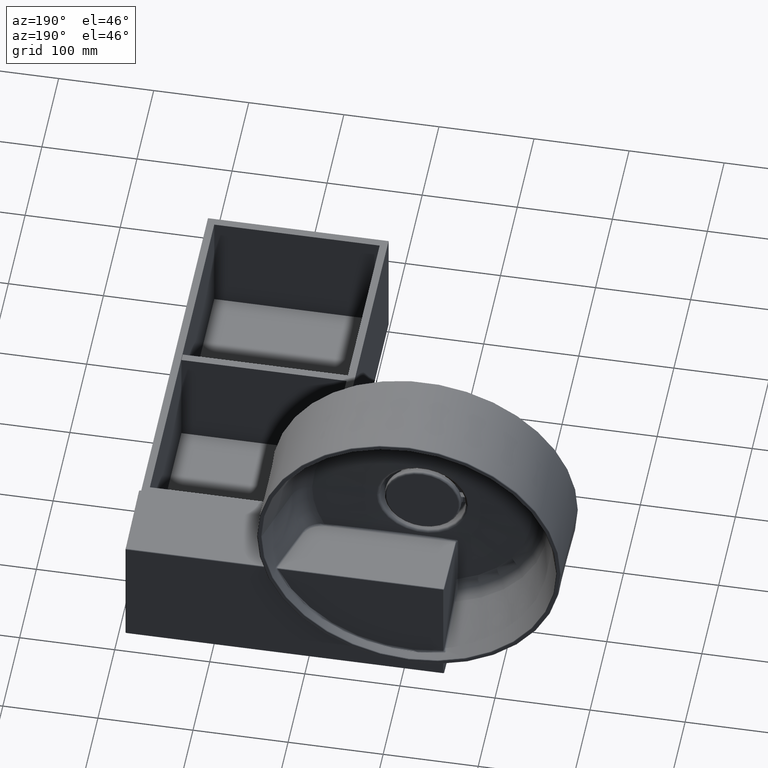
[diagram: clean part render]
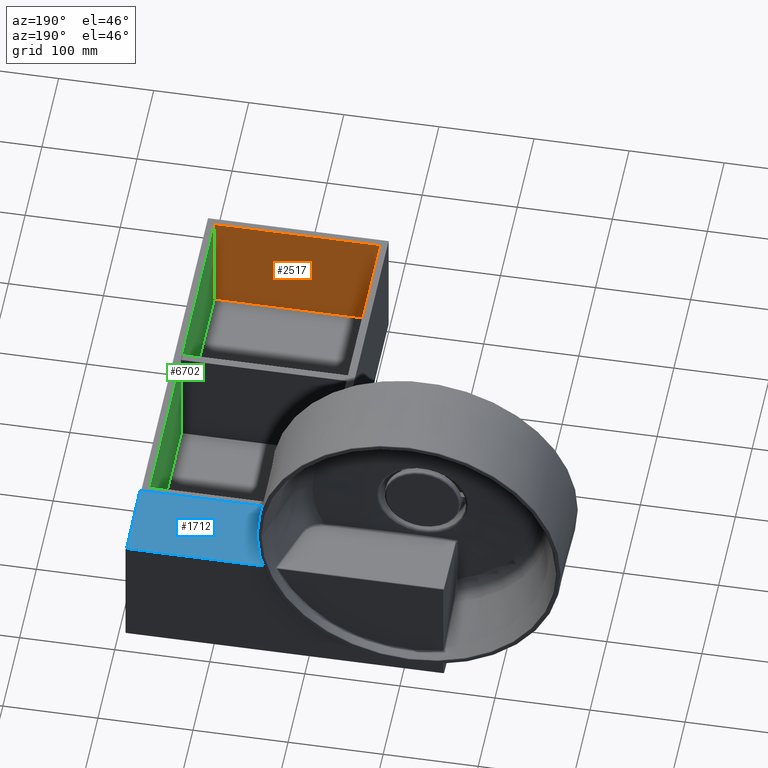
[diagram: same view with three faces highlighted in distinct colors, each labeled with its STEP entity id]
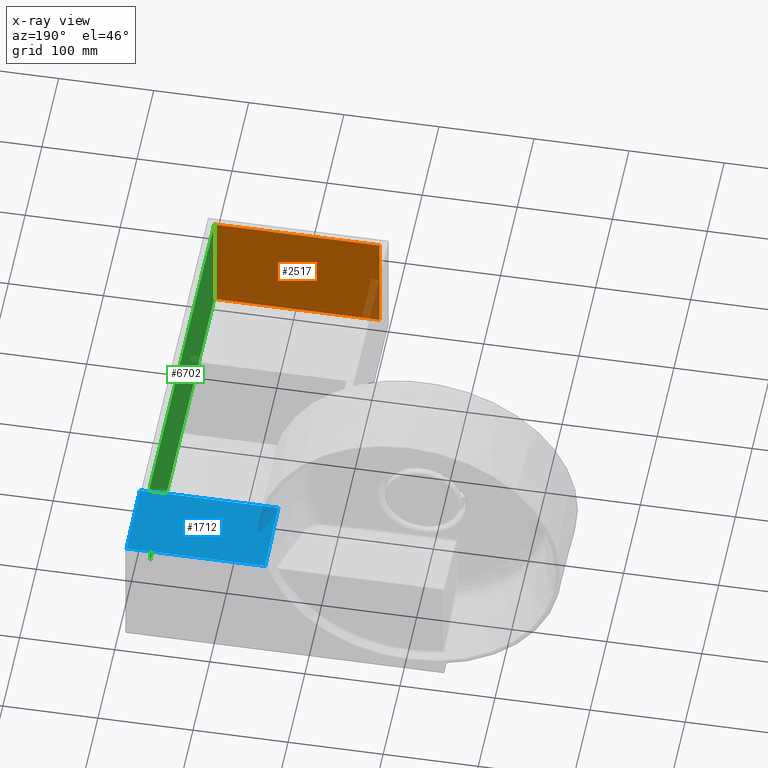
[diagram: x-ray of the same camera — body ghosted, the three highlighted faces saturated]
A machine part, auxiliary view with three faces highlighted in distinct colors.
The next image is the same camera in x-ray (body ghosted, the three faces saturated) — at least one of them is partly hidden behind the body in this view.
Their STEP definitions:

[orange] entity #2517 — the highlighted planar face has unit normal (0, 1, 0).
#16 = CARTESIAN_POINT ( 'NONE',  ( 181.9999999999999716, 8.000000000000000000, -110.9999999999999858 ) ) ;
#446 = EDGE_CURVE ( 'NONE', #1735, #4037, #6811, .T. ) ;
#623 = CARTESIAN_POINT ( 'NONE',  ( -5.775304786800829144E-17, 8.000000000000000000, -110.9999999999999858 ) ) ;
#917 = VECTOR ( 'NONE', #9969, 1000.000000000000000 ) ;
#952 = VECTOR ( 'NONE', #6696, 1000.000000000000000 ) ;
#1735 = VERTEX_POINT ( 'NONE', #3499 ) ;
#2302 = LINE ( 'NONE', #623, #6671 ) ;
#2517 = ADVANCED_FACE ( 'NONE', ( #6153 ), #5321, .T. ) ;
#3418 = EDGE_LOOP ( 'NONE', ( #11144, #10845, #10618, #10668 ) ) ;
#3499 = CARTESIAN_POINT ( 'NONE',  ( 182.0000000000000000, 8.000000000000000000, 0.0000000000000000000 ) ) ;
#3772 = VERTEX_POINT ( 'NONE', #10442 ) ;
#4037 = VERTEX_POINT ( 'NONE', #16 ) ;
#4113 = VECTOR ( 'NONE', #7063, 1000.000000000000000 ) ;
#5155 = DIRECTION ( 'NONE',  ( 0.0000000000000000000, -0.0000000000000000000, 1.000000000000000000 ) ) ;
#5217 = DIRECTION ( 'NONE',  ( 0.0000000000000000000, 1.000000000000000000, 0.0000000000000000000 ) ) ;
#5257 = VERTEX_POINT ( 'NONE', #7299 ) ;
#5270 = CARTESIAN_POINT ( 'NONE',  ( 0.0000000000000000000, 8.000000000000000000, 0.0000000000000000000 ) ) ;
#5321 = PLANE ( 'NONE',  #7962 ) ;
#6138 = EDGE_CURVE ( 'NONE', #5257, #4037, #2302, .T. ) ;
#6153 = FACE_OUTER_BOUND ( 'NONE', #3418, .T. ) ;
#6671 = VECTOR ( 'NONE', #7472, 1000.000000000000000 ) ;
#6696 = DIRECTION ( 'NONE',  ( -2.238352872228138170E-16, 0.0000000000000000000, -1.000000000000000000 ) ) ;
#6748 = CARTESIAN_POINT ( 'NONE',  ( 181.9999999999999716, 8.000000000000000000, -110.9999999999999858 ) ) ;
#6811 = LINE ( 'NONE', #6748, #952 ) ;
#6860 = CARTESIAN_POINT ( 'NONE',  ( 8.000000000000023093, 8.000000000000000000, -9.639155451353390532E-16 ) ) ;
#6906 = LINE ( 'NONE', #6860, #4113 ) ;
#6991 = EDGE_CURVE ( 'NONE', #5257, #3772, #6906, .T. ) ;
#7063 = DIRECTION ( 'NONE',  ( 1.204894431419170365E-16, -0.0000000000000000000, 1.000000000000000000 ) ) ;
#7299 = CARTESIAN_POINT ( 'NONE',  ( 8.000000000000010658, 8.000000000000000000, -110.9999999999999858 ) ) ;
#7372 = EDGE_CURVE ( 'NONE', #3772, #1735, #9943, .T. ) ;
#7472 = DIRECTION ( 'NONE',  ( 1.000000000000000000, 0.0000000000000000000, 0.0000000000000000000 ) ) ;
#7962 = AXIS2_PLACEMENT_3D ( 'NONE', #5270, #5217, #5155 ) ;
#9943 = LINE ( 'NONE', #9979, #917 ) ;
#9969 = DIRECTION ( 'NONE',  ( 1.000000000000000000, 0.0000000000000000000, 0.0000000000000000000 ) ) ;
#9979 = CARTESIAN_POINT ( 'NONE',  ( 1.530808498934191561E-14, 8.000000000000000000, 0.0000000000000000000 ) ) ;
#10442 = CARTESIAN_POINT ( 'NONE',  ( 8.000000000000023093, 8.000000000000000000, 0.0000000000000000000 ) ) ;
#10618 = ORIENTED_EDGE ( 'NONE', *, *, #7372, .T. ) ;
#10668 = ORIENTED_EDGE ( 'NONE', *, *, #446, .T. ) ;
#10845 = ORIENTED_EDGE ( 'NONE', *, *, #6991, .T. ) ;
#11144 = ORIENTED_EDGE ( 'NONE', *, *, #6138, .F. ) ;

[blue] entity #1712 — the highlighted planar face has unit normal (-0, 0.0087, 1).
#556 = VECTOR ( 'NONE', #2246, 1000.000000000000000 ) ;
#1355 = VECTOR ( 'NONE', #9264, 1000.000000000000114 ) ;
#1712 = ADVANCED_FACE ( 'NONE', ( #3739 ), #3726, .T. ) ;
#1731 = CARTESIAN_POINT ( 'NONE',  ( 45.44422750803981614, 400.1663011575827795, 1.740331601312044230 ) ) ;
#2141 = LINE ( 'NONE', #2185, #556 ) ;
#2185 = CARTESIAN_POINT ( 'NONE',  ( -143.7417837622144816, 399.9999000000000251, 1.741783762214496711 ) ) ;
#2245 = CARTESIAN_POINT ( 'NONE',  ( 45.11939061895716918, 428.3390647260438868, 1.494471618349778375 ) ) ;
#2246 = DIRECTION ( 'NONE',  ( -1.000000000000000000, -1.242786967863980845E-16, -1.925929944387235853E-34 ) ) ;
#2380 = EDGE_CURVE ( 'NONE', #9481, #6540, #8751, .T. ) ;
#2640 = CARTESIAN_POINT ( 'NONE',  ( 45.45820311915665712, 400.5042632677491383, 1.737382250658336957 ) ) ;
#2692 = CARTESIAN_POINT ( 'NONE',  ( 44.43839383923673125, 484.0086265354984221, 1.008650712469194577 ) ) ;
#2697 = CARTESIAN_POINT ( 'NONE',  ( 45.41015585691837941, 399.9999000000000251, 1.741783762214496711 ) ) ;
#2849 = EDGE_CURVE ( 'NONE', #4130, #10672, #2141, .T. ) ;
#2927 = CARTESIAN_POINT ( 'NONE',  ( 190.2669050271906031, 484.0086265354984221, 1.008650712469194577 ) ) ;
#2987 = CARTESIAN_POINT ( 'NONE',  ( 44.77946167326811633, 456.1738526190043785, 1.251561104424099513 ) ) ;
#3293 = VERTEX_POINT ( 'NONE', #5486 ) ;
#3666 = DIRECTION ( 'NONE',  ( 0.0000000000000000000, -0.9999619230641713097, 0.008726535498373953759 ) ) ;
#3685 = DIRECTION ( 'NONE',  ( -1.084522459198156159E-18, 0.008726535498373953759, 0.9999619230641713097 ) ) ;
#3698 = CARTESIAN_POINT ( 'NONE',  ( -143.7417837622144816, 484.9998999999999683, 1.000000000000000888 ) ) ;
#3703 = B_SPLINE_CURVE_WITH_KNOTS ( 'NONE', 3,
 ( #2692, #2987, #2245, #2640 ),
 .UNSPECIFIED., .F., .F.,
 ( 4, 4 ),
 ( 0.0000000000000000000, 0.08351376979501284881 ),
 .UNSPECIFIED. ) ;
#3726 = PLANE ( 'NONE',  #8133 ) ;
#3739 = FACE_OUTER_BOUND ( 'NONE', #5036, .T. ) ;
#3955 = CARTESIAN_POINT ( 'NONE',  ( 190.2328213397217098, 487.9142302739852539, 0.9745670250003168888 ) ) ;
#4061 = EDGE_CURVE ( 'NONE', #3293, #10672, #8349, .T. ) ;
#4130 = VERTEX_POINT ( 'NONE', #4729 ) ;
#4506 = CARTESIAN_POINT ( 'NONE',  ( 45.41015585691837941, 399.9999000000000251, 1.741783762214496711 ) ) ;
#4729 = CARTESIAN_POINT ( 'NONE',  ( 191.0000380769359083, 399.9999000000000251, 1.741783762214496711 ) ) ;
#4966 = ORIENTED_EDGE ( 'NONE', *, *, #5730, .T. ) ;
#5036 = EDGE_LOOP ( 'NONE', ( #9421, #8766, #8841, #4966, #7547 ) ) ;
#5486 = CARTESIAN_POINT ( 'NONE',  ( 45.45820311915665712, 400.5042632677491383, 1.737382250658336957 ) ) ;
#5730 = EDGE_CURVE ( 'NONE', #4130, #9481, #9964, .T. ) ;
#6540 = VERTEX_POINT ( 'NONE', #7092 ) ;
#7092 = CARTESIAN_POINT ( 'NONE',  ( 44.43839383923673125, 484.0086265354984221, 1.008650712469194577 ) ) ;
#7547 = ORIENTED_EDGE ( 'NONE', *, *, #2380, .T. ) ;
#8037 = DIRECTION ( 'NONE',  ( -1.000000000000000000, -1.242786967863980845E-16, -1.466530606543666344E-38 ) ) ;
#8133 = AXIS2_PLACEMENT_3D ( 'NONE', #3698, #3685, #3666 ) ;
#8145 = CARTESIAN_POINT ( 'NONE',  ( -143.7417837622144816, 484.0086265354984221, 1.008650712469194577 ) ) ;
#8349 = B_SPLINE_CURVE_WITH_KNOTS ( 'NONE', 3,
 ( #9435, #9553, #1731, #4506 ),
 .UNSPECIFIED., .F., .F.,
 ( 4, 4 ),
 ( 0.0000000000000000000, 0.0005066657858659111930 ),
 .UNSPECIFIED. ) ;
#8751 = LINE ( 'NONE', #8145, #9075 ) ;
#8766 = ORIENTED_EDGE ( 'NONE', *, *, #4061, .T. ) ;
#8841 = ORIENTED_EDGE ( 'NONE', *, *, #2849, .F. ) ;
#9075 = VECTOR ( 'NONE', #8037, 1000.000000000000000 ) ;
#9264 = DIRECTION ( 'NONE',  ( -0.008726203243944361324, 0.9999238504775704861, -0.008726203243944238158 ) ) ;
#9421 = ORIENTED_EDGE ( 'NONE', *, *, #9595, .T. ) ;
#9435 = CARTESIAN_POINT ( 'NONE',  ( 45.45820311915665712, 400.5042632677491383, 1.737382250658336957 ) ) ;
#9481 = VERTEX_POINT ( 'NONE', #2927 ) ;
#9553 = CARTESIAN_POINT ( 'NONE',  ( 45.46027050016877524, 400.3344196522475613, 1.738864453435923441 ) ) ;
#9595 = EDGE_CURVE ( 'NONE', #6540, #3293, #3703, .T. ) ;
#9964 = LINE ( 'NONE', #3955, #1355 ) ;
#10672 = VERTEX_POINT ( 'NONE', #2697 ) ;

[green] entity #6702 — the highlighted planar face has unit normal (1, 0, -0).
#334 = DIRECTION ( 'NONE',  ( 1.000000000000000000, 0.0000000000000000000, -2.238352872228138170E-16 ) ) ;
#535 = DIRECTION ( 'NONE',  ( 0.0000000000000000000, 1.000000000000000000, 0.0000000000000000000 ) ) ;
#573 = CARTESIAN_POINT ( 'NONE',  ( 182.0000000000000000, 2.000000000000000000, -110.9999999999999858 ) ) ;
#592 = LINE ( 'NONE', #573, #4287 ) ;
#1262 = VERTEX_POINT ( 'NONE', #9465 ) ;
#1282 = EDGE_LOOP ( 'NONE', ( #10232, #10581, #7120, #6814 ) ) ;
#1849 = EDGE_CURVE ( 'NONE', #10306, #2637, #592, .T. ) ;
#1862 = VECTOR ( 'NONE', #9227, 1000.000000000000000 ) ;
#2439 = DIRECTION ( 'NONE',  ( -0.0000000000000000000, -1.000000000000000000, -0.0000000000000000000 ) ) ;
#2456 = CARTESIAN_POINT ( 'NONE',  ( 182.0000000000000284, 524.2577965360725329, 0.0000000000000000000 ) ) ;
#2489 = LINE ( 'NONE', #2456, #7981 ) ;
#2637 = VERTEX_POINT ( 'NONE', #8459 ) ;
#3876 = LINE ( 'NONE', #6798, #6799 ) ;
#3942 = AXIS2_PLACEMENT_3D ( 'NONE', #4054, #334, #9477 ) ;
#4054 = CARTESIAN_POINT ( 'NONE',  ( 182.0000000000000000, 524.2577965360725329, -124.0000000000000142 ) ) ;
#4287 = VECTOR ( 'NONE', #535, 1000.000000000000000 ) ;
#6702 = ADVANCED_FACE ( 'NONE', ( #6828 ), #9293, .F. ) ;
#6798 = CARTESIAN_POINT ( 'NONE',  ( 182.0000000000000000, 392.0000000000000568, -124.0000000000000142 ) ) ;
#6799 = VECTOR ( 'NONE', #11110, 1000.000000000000000 ) ;
#6814 = ORIENTED_EDGE ( 'NONE', *, *, #10090, .F. ) ;
#6828 = FACE_OUTER_BOUND ( 'NONE', #1282, .T. ) ;
#6975 = CARTESIAN_POINT ( 'NONE',  ( 182.0000000000000000, 8.000000000000010658, -110.9999999999999858 ) ) ;
#7120 = ORIENTED_EDGE ( 'NONE', *, *, #9859, .T. ) ;
#7981 = VECTOR ( 'NONE', #2439, 1000.000000000000000 ) ;
#8405 = EDGE_CURVE ( 'NONE', #1262, #2637, #3876, .T. ) ;
#8459 = CARTESIAN_POINT ( 'NONE',  ( 182.0000000000000000, 392.0000000000000000, -110.9999999999999858 ) ) ;
#8686 = CARTESIAN_POINT ( 'NONE',  ( 182.0000000000000284, 8.000000000000007105, 0.0000000000000000000 ) ) ;
#9227 = DIRECTION ( 'NONE',  ( 2.238352872228138170E-16, 0.0000000000000000000, 1.000000000000000000 ) ) ;
#9250 = CARTESIAN_POINT ( 'NONE',  ( 182.0000000000000000, 8.000000000000007105, -124.0000000000000142 ) ) ;
#9293 = PLANE ( 'NONE',  #3942 ) ;
#9317 = LINE ( 'NONE', #9250, #1862 ) ;
#9465 = CARTESIAN_POINT ( 'NONE',  ( 182.0000000000000284, 392.0000000000000568, 0.0000000000000000000 ) ) ;
#9477 = DIRECTION ( 'NONE',  ( -2.238352872228138170E-16, 0.0000000000000000000, -1.000000000000000000 ) ) ;
#9859 = EDGE_CURVE ( 'NONE', #10306, #11143, #9317, .T. ) ;
#10090 = EDGE_CURVE ( 'NONE', #1262, #11143, #2489, .T. ) ;
#10232 = ORIENTED_EDGE ( 'NONE', *, *, #8405, .T. ) ;
#10306 = VERTEX_POINT ( 'NONE', #6975 ) ;
#10581 = ORIENTED_EDGE ( 'NONE', *, *, #1849, .F. ) ;
#11110 = DIRECTION ( 'NONE',  ( -2.238352872228138170E-16, 0.0000000000000000000, -1.000000000000000000 ) ) ;
#11143 = VERTEX_POINT ( 'NONE', #8686 ) ;